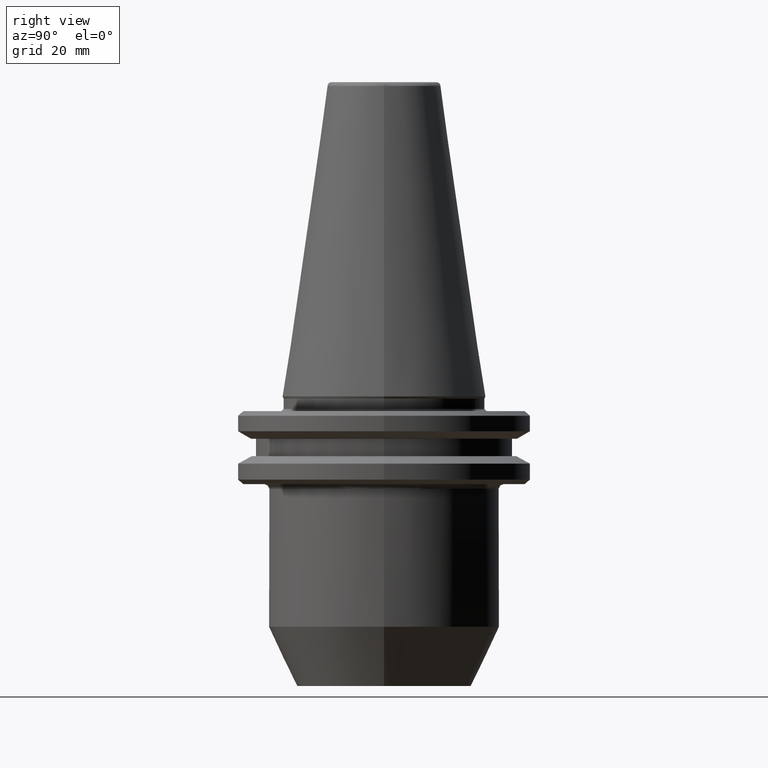
[diagram: clean part render]
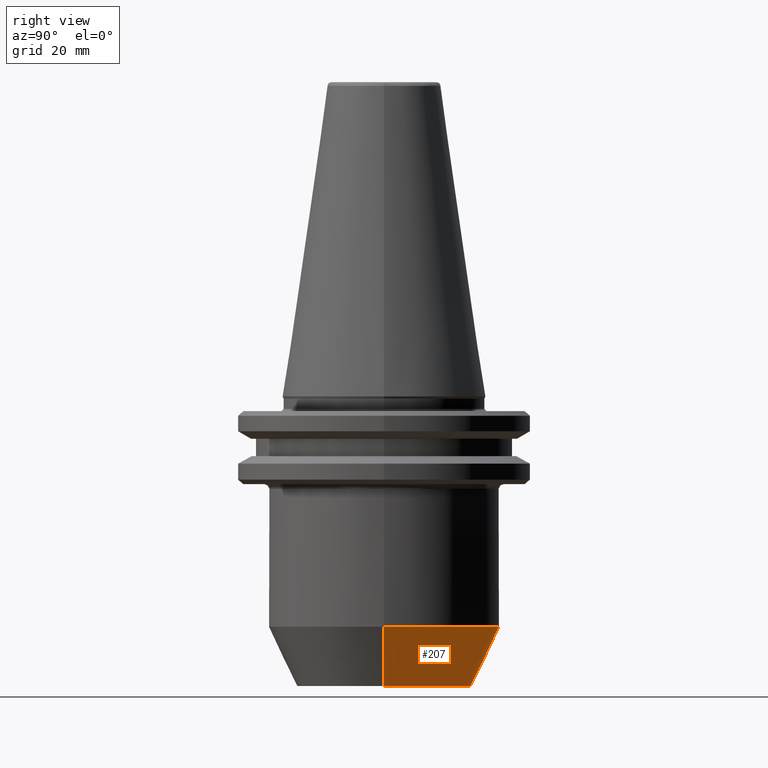
[diagram: same view with one face highlighted and labeled with its STEP entity id]
A machine part, right view. The second image highlights one B-rep face of the part: STEP entity #207.
In plain terms, the highlighted conical surface has half-angle 25 deg.
Its self-contained STEP definition (entity closure, byte-faithful):
#89 = EDGE_CURVE ( 'NONE', #296, #1034, #815, .T. ) ;
#115 = EDGE_CURVE ( 'NONE', #1034, #438, #389, .T. ) ;
#145 = VECTOR ( 'NONE', #189, 1000.000000000000200 ) ;
#189 = DIRECTION ( 'NONE',  ( -0.4226182617406925000, 5.175581015019573700E-017, 0.9063077870366531600 ) ) ;
#207 = ADVANCED_FACE ( 'NONE', ( #762 ), #429, .T. ) ;
#224 = ORIENTED_EDGE ( 'NONE', *, *, #89, .T. ) ;
#296 = VERTEX_POINT ( 'NONE', #1223 ) ;
#330 = ORIENTED_EDGE ( 'NONE', *, *, #353, .F. ) ;
#341 = CIRCLE ( 'NONE', #608, 25.00000000000000400 ) ;
#346 = AXIS2_PLACEMENT_3D ( 'NONE', #433, #877, #430 ) ;
#353 = EDGE_CURVE ( 'NONE', #296, #1280, #472, .T. ) ;
#382 = CARTESIAN_POINT ( 'NONE',  ( -19.00000000000000400, 2.694222958124177600E-015, -62.99999999999997200 ) ) ;
#389 = LINE ( 'NONE', #1148, #145 ) ;
#429 = CONICAL_SURFACE ( 'NONE', #346, 25.00000000000000700, 0.4363323129985748300 ) ;
#430 = DIRECTION ( 'NONE',  ( 1.000000000000000000, 0.0000000000000000000, 0.0000000000000000000 ) ) ;
#433 = CARTESIAN_POINT ( 'NONE',  ( 0.0000000000000000000, 0.0000000000000000000, -50.13295847694234900 ) ) ;
#438 = VERTEX_POINT ( 'NONE', #691 ) ;
#472 = LINE ( 'NONE', #675, #583 ) ;
#485 = CARTESIAN_POINT ( 'NONE',  ( 25.00000000000000700, 0.0000000000000000000, -50.13295847694234900 ) ) ;
#564 = CARTESIAN_POINT ( 'NONE',  ( 0.0000000000000000000, 0.0000000000000000000, -62.99999999999997200 ) ) ;
#583 = VECTOR ( 'NONE', #986, 1000.000000000000200 ) ;
#608 = AXIS2_PLACEMENT_3D ( 'NONE', #725, #720, #715 ) ;
#675 = CARTESIAN_POINT ( 'NONE',  ( 25.00000000000000700, 0.0000000000000000000, -50.13295847694234900 ) ) ;
#691 = CARTESIAN_POINT ( 'NONE',  ( -25.00000000000000700, 3.061616997868383800E-015, -50.13295847694234900 ) ) ;
#715 = DIRECTION ( 'NONE',  ( 1.000000000000000000, 0.0000000000000000000, 0.0000000000000000000 ) ) ;
#720 = DIRECTION ( 'NONE',  ( 0.0000000000000000000, 0.0000000000000000000, 1.000000000000000000 ) ) ;
#725 = CARTESIAN_POINT ( 'NONE',  ( 0.0000000000000000000, 0.0000000000000000000, -50.13295847694234900 ) ) ;
#734 = DIRECTION ( 'NONE',  ( 1.000000000000000000, 0.0000000000000000000, 0.0000000000000000000 ) ) ;
#762 = FACE_OUTER_BOUND ( 'NONE', #1513, .T. ) ;
#815 = CIRCLE ( 'NONE', #1304, 19.00000000000000400 ) ;
#841 = DIRECTION ( 'NONE',  ( 0.0000000000000000000, 0.0000000000000000000, 1.000000000000000000 ) ) ;
#877 = DIRECTION ( 'NONE',  ( 0.0000000000000000000, 0.0000000000000000000, 1.000000000000000000 ) ) ;
#909 = EDGE_CURVE ( 'NONE', #1280, #438, #341, .T. ) ;
#986 = DIRECTION ( 'NONE',  ( 0.4226182617406925000, 0.0000000000000000000, 0.9063077870366531600 ) ) ;
#1001 = ORIENTED_EDGE ( 'NONE', *, *, #115, .T. ) ;
#1034 = VERTEX_POINT ( 'NONE', #382 ) ;
#1148 = CARTESIAN_POINT ( 'NONE',  ( -25.00000000000000700, 3.061616997868383800E-015, -50.13295847694234900 ) ) ;
#1223 = CARTESIAN_POINT ( 'NONE',  ( 19.00000000000000400, 0.0000000000000000000, -62.99999999999997200 ) ) ;
#1280 = VERTEX_POINT ( 'NONE', #485 ) ;
#1304 = AXIS2_PLACEMENT_3D ( 'NONE', #564, #841, #734 ) ;
#1479 = ORIENTED_EDGE ( 'NONE', *, *, #909, .F. ) ;
#1513 = EDGE_LOOP ( 'NONE', ( #224, #1001, #1479, #330 ) ) ;